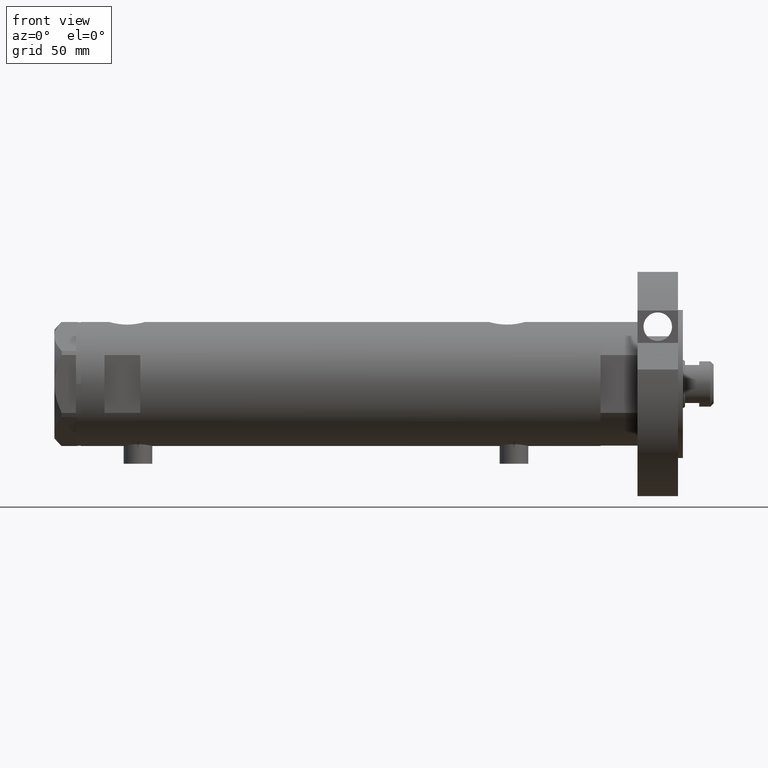
[diagram: clean part render]
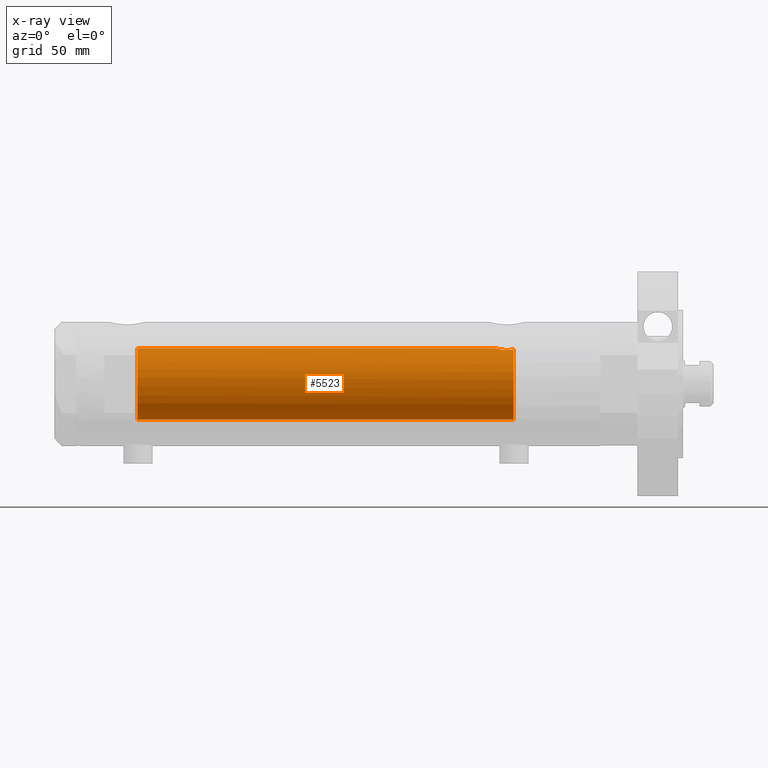
[diagram: x-ray — body ghosted, one internal face saturated and labeled with its STEP entity id]
A machine part, front view, then the same camera in x-ray: the body is ghosted and one INTERNAL B-rep face — a face not visible from any outside direction — is saturated and labeled: STEP entity #5523.
In plain terms, the highlighted cylindrical surface (edge-blend (fillet) strip) has radius 15 mm, axis along (1, 0, -0).
Its self-contained STEP definition (entity closure, byte-faithful):
#11 = CARTESIAN_POINT ( 'NONE',  ( 14.18786347641750112, -4.868757996482119488, -69.63322300400297138 ) ) ;
#36 = CARTESIAN_POINT ( 'NONE',  ( 14.33594561531104006, -4.414979644548150617, -67.69453393419244946 ) ) ;
#71 = CARTESIAN_POINT ( 'NONE',  ( 14.96064712090283955, -1.106639041422192049, -65.00738179736373468 ) ) ;
#99 = DIRECTION ( 'NONE',  ( -0.000000000000000000, -0.000000000000000000, -1.000000000000000000 ) ) ;
#138 = CARTESIAN_POINT ( 'NONE',  ( 0.000000000000000000, 0.000000000000000000, 85.15000000000000568 ) ) ;
#259 = DIRECTION ( 'NONE',  ( -0.000000000000000000, -0.000000000000000000, -1.000000000000000000 ) ) ;
#302 = B_SPLINE_CURVE_WITH_KNOTS ( 'NONE', 3,
 ( #3076, #3506, #1995, #6061, #1071, #3480, #2545, #1500, #1595, #1101, #11, #2024, #5032, #4548, #4093, #4612, #36, #1527, #2987, #4052, #1478, #5490, #5063, #497, #4021, #71, #598, #3602, #463, #5098 ),
 .UNSPECIFIED., .F., .F.,
 ( 4, 2, 2, 2, 2, 2, 2, 2, 2, 2, 2, 2, 2, 2, 4 ),
 ( 0.004672505804584295430, 0.005337629501999315365, 0.006002753199414335300, 0.006667876896829355235, 0.007333000594244375170, 0.007998124291659395105, 0.008663247989074415040, 0.009328371686489433240, 0.009993495383904454910, 0.01132374277873445662, 0.01265399017356445832, 0.01331911387097945050, 0.01398423756839444268, 0.01464936126580943312, 0.01531448496322442530 ),
 .UNSPECIFIED. ) ;
#318 = CARTESIAN_POINT ( 'NONE',  ( 14.98404828787190901, -0.7909490205761859904, 84.63356230794190083 ) ) ;
#463 = CARTESIAN_POINT ( 'NONE',  ( 15.00000000000000888, -0.2216692655473423146, -64.88500000000003354 ) ) ;
#465 = CYLINDRICAL_SURFACE ( 'NONE', #3042, 15.00000000000000000 ) ;
#497 = CARTESIAN_POINT ( 'NONE',  ( 14.90017778876745247, -1.739641523727897710, -65.20130925695124802 ) ) ;
#598 = CARTESIAN_POINT ( 'NONE',  ( 14.97537530859972321, -0.8874117095427768165, -64.96137464055831856 ) ) ;
#692 = LINE ( 'NONE', #5661, #4385 ) ;
#719 = EDGE_CURVE ( 'NONE', #1386, #4394, #3142, .T. ) ;
#765 = CARTESIAN_POINT ( 'NONE',  ( -15.00000000000000000, 0.000000000000000000, 108.9499999999999886 ) ) ;
#880 = CARTESIAN_POINT ( 'NONE',  ( 14.82638779339053947, -2.275571356824482638, 85.15000000000000568 ) ) ;
#1071 = CARTESIAN_POINT ( 'NONE',  ( 14.30602371879160728, -4.510400617436905790, -71.58665028800270136 ) ) ;
#1101 = CARTESIAN_POINT ( 'NONE',  ( 14.18781489734108270, -4.868896704194244585, -69.85545969036061820 ) ) ;
#1103 = VERTEX_POINT ( 'NONE', #1466 ) ;
#1386 = VERTEX_POINT ( 'NONE', #6253 ) ;
#1425 = CARTESIAN_POINT ( 'NONE',  ( 14.46277203719950855, -3.978470183374511304, -72.54999999999999716 ) ) ;
#1432 = EDGE_CURVE ( 'NONE', #1386, #1103, #2847, .T. ) ;
#1466 = CARTESIAN_POINT ( 'NONE',  ( -15.00000000000000000, 0.000000000000000000, -72.54999999999999716 ) ) ;
#1478 = CARTESIAN_POINT ( 'NONE',  ( 14.72015646623406049, -2.909233045280597896, -65.82572079632734585 ) ) ;
#1500 = CARTESIAN_POINT ( 'NONE',  ( 14.20819413761016037, -4.809312895991457282, -70.51713251522167525 ) ) ;
#1527 = CARTESIAN_POINT ( 'NONE',  ( 14.42796883436190392, -4.108435602805834641, -67.10726922759032220 ) ) ;
#1595 = CARTESIAN_POINT ( 'NONE',  ( 14.19797987272029793, -4.839174951492910992, -70.29741451501413962 ) ) ;
#1740 = CARTESIAN_POINT ( 'NONE',  ( 14.82638779339053947, -2.275571356824482638, 85.15000000000000568 ) ) ;
#1854 = EDGE_CURVE ( 'NONE', #4607, #2289, #302, .T. ) ;
#1879 = ORIENTED_EDGE ( 'NONE', *, *, #719, .T. ) ;
#1995 = CARTESIAN_POINT ( 'NONE',  ( 14.39424372609267877, -4.221002267729139668, -72.17893131093291004 ) ) ;
#2024 = CARTESIAN_POINT ( 'NONE',  ( 14.19858338301463085, -4.837406781463694294, -69.18614104090498529 ) ) ;
#2028 = DIRECTION ( 'NONE',  ( -1.000000000000000000, 0.000000000000000000, 0.000000000000000000 ) ) ;
#2289 = VERTEX_POINT ( 'NONE', #6407 ) ;
#2332 = CARTESIAN_POINT ( 'NONE',  ( 14.93900636919600089, -1.364886281976675164, 84.77622504971311912 ) ) ;
#2388 = CARTESIAN_POINT ( 'NONE',  ( 0.000000000000000000, 0.000000000000000000, 108.9499999999999886 ) ) ;
#2408 = AXIS2_PLACEMENT_3D ( 'NONE', #138, #4712, #5698 ) ;
#2504 = ORIENTED_EDGE ( 'NONE', *, *, #4095, .F. ) ;
#2545 = CARTESIAN_POINT ( 'NONE',  ( 14.23846660849503110, -4.718934182878724570, -70.95401121469809880 ) ) ;
#2847 = LINE ( 'NONE', #765, #3367 ) ;
#2897 = CARTESIAN_POINT ( 'NONE',  ( 0.000000000000000000, 0.000000000000000000, -72.54999999999999716 ) ) ;
#2987 = CARTESIAN_POINT ( 'NONE',  ( 14.49994286062941384, -3.853373987417223034, -66.74743896782911179 ) ) ;
#3042 = AXIS2_PLACEMENT_3D ( 'NONE', #2388, #4448, #3962 ) ;
#3076 = CARTESIAN_POINT ( 'NONE',  ( 14.46277203719950855, -3.978470183374511304, -72.54999999999999716 ) ) ;
#3142 = CIRCLE ( 'NONE', #2408, 15.00000000000000000 ) ;
#3153 = EDGE_CURVE ( 'NONE', #3638, #2289, #692, .T. ) ;
#3367 = VECTOR ( 'NONE', #259, 1000.000000000000000 ) ;
#3387 = CARTESIAN_POINT ( 'NONE',  ( 14.85289483991916981, -2.102865829523694163, 85.05860377881604961 ) ) ;
#3444 = CARTESIAN_POINT ( 'NONE',  ( 15.00000000000000000, 0.000000000000000000, 84.58500000000000796 ) ) ;
#3480 = CARTESIAN_POINT ( 'NONE',  ( 14.25856516724843637, -4.658255869285517825, -71.17044016644935311 ) ) ;
#3506 = CARTESIAN_POINT ( 'NONE',  ( 14.42775250319759728, -4.105775281508738495, -72.36911445102909113 ) ) ;
#3541 = EDGE_LOOP ( 'NONE', ( #2504, #3799, #4276, #4195, #6058, #1879 ) ) ;
#3602 = CARTESIAN_POINT ( 'NONE',  ( 14.99508877558422881, -0.4434836953032569862, -64.90007684727665094 ) ) ;
#3638 = VERTEX_POINT ( 'NONE', #3444 ) ;
#3758 = CIRCLE ( 'NONE', #4796, 15.00000000000000000 ) ;
#3799 = ORIENTED_EDGE ( 'NONE', *, *, #3153, .T. ) ;
#3962 = DIRECTION ( 'NONE',  ( -1.000000000000000000, 0.000000000000000000, 0.000000000000000000 ) ) ;
#4021 = CARTESIAN_POINT ( 'NONE',  ( 14.92307637240704032, -1.532123959568890692, -65.12726557582080034 ) ) ;
#4052 = CARTESIAN_POINT ( 'NONE',  ( 14.64727859494137263, -3.248701865452405801, -66.10174013696655493 ) ) ;
#4093 = CARTESIAN_POINT ( 'NONE',  ( 14.25977760983849763, -4.654557688538883298, -68.31736805897654108 ) ) ;
#4095 = EDGE_CURVE ( 'NONE', #3638, #4394, #5214, .T. ) ;
#4102 = EDGE_CURVE ( 'NONE', #4607, #1103, #3758, .T. ) ;
#4195 = ORIENTED_EDGE ( 'NONE', *, *, #4102, .T. ) ;
#4276 = ORIENTED_EDGE ( 'NONE', *, *, #1854, .F. ) ;
#4385 = VECTOR ( 'NONE', #99, 1000.000000000000000 ) ;
#4394 = VERTEX_POINT ( 'NONE', #1740 ) ;
#4395 = CARTESIAN_POINT ( 'NONE',  ( 14.92029983160078288, -1.555365312915180320, 84.83609703141412695 ) ) ;
#4448 = DIRECTION ( 'NONE',  ( -0.000000000000000000, -0.000000000000000000, -1.000000000000000000 ) ) ;
#4548 = CARTESIAN_POINT ( 'NONE',  ( 14.23984499268011561, -4.714778477509576682, -68.53008258614765680 ) ) ;
#4607 = VERTEX_POINT ( 'NONE', #1425 ) ;
#4612 = CARTESIAN_POINT ( 'NONE',  ( 14.30772250772360366, -4.505024017690372418, -67.90010806953213773 ) ) ;
#4712 = DIRECTION ( 'NONE',  ( 0.000000000000000000, 0.000000000000000000, 1.000000000000000000 ) ) ;
#4796 = AXIS2_PLACEMENT_3D ( 'NONE', #2897, #5258, #2028 ) ;
#4822 = CARTESIAN_POINT ( 'NONE',  ( 15.00000000000000711, -0.3999014018875933218, 84.58500000000002217 ) ) ;
#5032 = CARTESIAN_POINT ( 'NONE',  ( 14.20926245015525957, -4.806160851464704287, -68.96377327795615031 ) ) ;
#5063 = CARTESIAN_POINT ( 'NONE',  ( 14.84733308118440398, -2.144376633039211999, -65.37751912952717248 ) ) ;
#5098 = CARTESIAN_POINT ( 'NONE',  ( 15.00000000000000000, 5.959273473684245944E-16, -64.88500000000000512 ) ) ;
#5214 = B_SPLINE_CURVE_WITH_KNOTS ( 'NONE', 3,
 ( #5878, #4822, #318, #2332, #4395, #5381, #3387, #880 ),
 .UNSPECIFIED., .F., .F.,
 ( 4, 2, 2, 4 ),
 ( 0.000000000000000000, 0.001182100180564269864, 0.001773150270846399592, 0.002364200361128529319 ),
 .UNSPECIFIED. ) ;
#5258 = DIRECTION ( 'NONE',  ( 0.000000000000000000, 0.000000000000000000, -1.000000000000000000 ) ) ;
#5381 = CARTESIAN_POINT ( 'NONE',  ( 14.87720562886503828, -1.924385875533404233, 84.97741675737692901 ) ) ;
#5490 = CARTESIAN_POINT ( 'NONE',  ( 14.81710879718118079, -2.343063746046463613, -65.48067662538953471 ) ) ;
#5523 = ADVANCED_FACE ( 'NONE', ( #5875 ), #465, .F. ) ;
#5661 = CARTESIAN_POINT ( 'NONE',  ( 15.00000000000000000, 1.836970198721029589E-15, 108.9499999999999886 ) ) ;
#5698 = DIRECTION ( 'NONE',  ( 1.000000000000000000, 0.000000000000000000, 0.000000000000000000 ) ) ;
#5875 = FACE_OUTER_BOUND ( 'NONE', #3541, .T. ) ;
#5878 = CARTESIAN_POINT ( 'NONE',  ( 15.00000000000000000, 0.000000000000000000, 84.58500000000000796 ) ) ;
#6058 = ORIENTED_EDGE ( 'NONE', *, *, #1432, .F. ) ;
#6061 = CARTESIAN_POINT ( 'NONE',  ( 14.33349657381506148, -4.422893686125038748, -71.78827841538880250 ) ) ;
#6253 = CARTESIAN_POINT ( 'NONE',  ( -15.00000000000000000, 0.000000000000000000, 85.15000000000000568 ) ) ;
#6407 = CARTESIAN_POINT ( 'NONE',  ( 15.00000000000000000, 5.959273473684245944E-16, -64.88500000000000512 ) ) ;